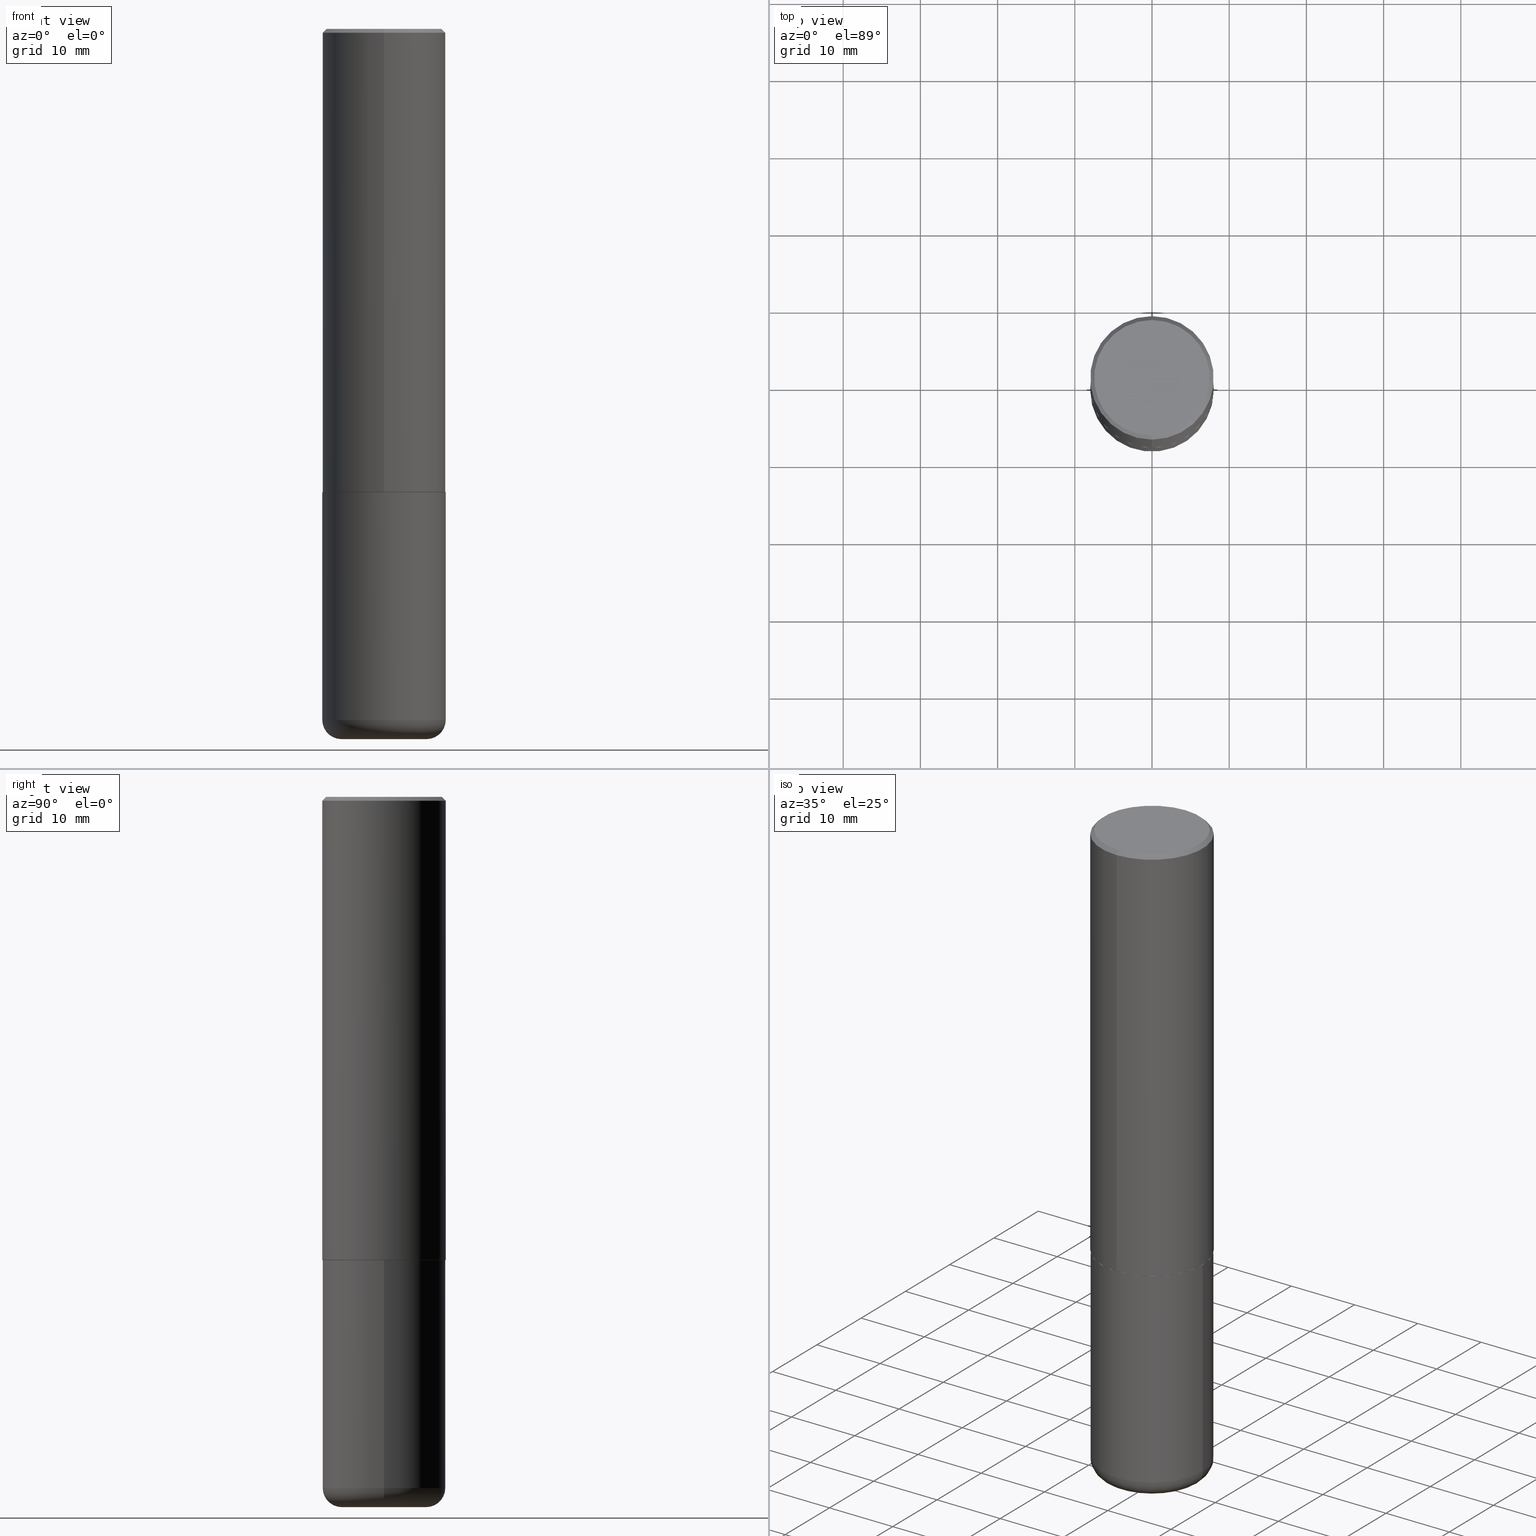
[diagram: canonical four-view strip — front | top / right | iso, engineering-drawing reading convention]
A machine part, canonical four-view strip (front | top / right | iso — engineering-drawing reading convention). The complete STEP part file that produces these views, byte-faithful:
ISO-10303-21;
HEADER;
FILE_DESCRIPTION (( 'STEP AP203' ),
    '1' );
FILE_NAME ('46920.STEP',
    '2024-03-05T08:37:29',
    ( '' ),
    ( '' ),
    'SwSTEP 2.0',
    'SolidWorks 2023',
    '' );
FILE_SCHEMA (( 'CONFIG_CONTROL_DESIGN' ));
ENDSEC;

DATA;
#1 = DIRECTION ( 'NONE',  ( 2.438088387897960049E-29, -3.491481338843145188E-15, -1.000000000000000000 ) ) ;
#2 = CIRCLE ( 'NONE', #211, 0.09839999999999986258 ) ;
#3 = CARTESIAN_POINT ( 'NONE',  ( 0.2165500000000000203, -1.415830597714283123E-14, -3.621999999999999442 ) ) ;
#4 = COORDINATED_UNIVERSAL_TIME_OFFSET ( 5, 0, .BEHIND. ) ;
#5 = DIRECTION ( 'NONE',  ( -2.445305379362280801E-29, 3.491715375355152192E-15, 1.000000000000000000 ) ) ;
#6 = CALENDAR_DATE ( 2024, 5, 3 ) ;
#7 = EDGE_CURVE ( 'NONE', #243, #277, #342, .T. ) ;
#8 = CARTESIAN_POINT ( 'NONE',  ( -2.192301132659546270E-15, -0.3139500000000083335, -2.362199999999998745 ) ) ;
#9 = CIRCLE ( 'NONE', #240, 0.2165500000000000203 ) ;
#10 = DIRECTION ( 'NONE',  ( 2.445305379362280521E-29, -3.491715375355152192E-15, -1.000000000000000000 ) ) ;
#11 = DIRECTION ( 'NONE',  ( -2.445468806185136877E-29, 3.491481338843145188E-15, 1.000000000000000000 ) ) ;
#12 = DIRECTION ( 'NONE',  ( 1.000000000000000000, -6.982962677686269866E-15, 0.000000000000000000 ) ) ;
#13 = ADVANCED_FACE ( 'NONE', ( #328 ), #197, .F. ) ;
#14 = CONICAL_SURFACE ( 'NONE', #38, 0.3139500000000000624, 0.7853981633975165577 ) ;
#15 = DIRECTION ( 'NONE',  ( 6.982962677686265922E-15, 1.000000000000000000, -3.496670018878889100E-15 ) ) ;
#16 = FACE_OUTER_BOUND ( 'NONE', #19, .T. ) ;
#17 = ORIENTED_EDGE ( 'NONE', *, *, #352, .T. ) ;
#18 = VECTOR ( 'NONE', #198, 39.37007874015748143 ) ;
#19 = EDGE_LOOP ( 'NONE', ( #251, #47, #320, #341 ) ) ;
#20 = ORIENTED_EDGE ( 'NONE', *, *, #329, .F. ) ;
#21 = APPROVAL_ROLE ( '' ) ;
#22 = ORIENTED_EDGE ( 'NONE', *, *, #7, .F. ) ;
#23 = EDGE_CURVE ( 'NONE', #86, #116, #355, .T. ) ;
#24 =( LENGTH_UNIT ( ) NAMED_UNIT ( * ) SI_UNIT ( $, .METRE. ) );
#25 = CIRCLE ( 'NONE', #412, 0.3149500000000000077 ) ;
#26 = EDGE_LOOP ( 'NONE', ( #88, #380, #210, #128 ) ) ;
#27 = ADVANCED_FACE ( 'NONE', ( #295 ), #269, .T. ) ;
#28 = DIRECTION ( 'NONE',  ( -6.982962677686265922E-15, -1.000000000000000000, 3.469564049740290009E-15 ) ) ;
#29 = FACE_OUTER_BOUND ( 'NONE', #275, .T. ) ;
#30 = APPROVAL_ROLE ( '' ) ;
#31 = CARTESIAN_POINT ( 'NONE',  ( 5.776300367129578571E-29, -8.248130059663939111E-15, -2.362199999999999633 ) ) ;
#32 = CIRCLE ( 'NONE', #374, 0.2949499999999998234 ) ;
#33 = PERSON_AND_ORGANIZATION_ROLE ( 'design_supplier' ) ;
#34 = DIRECTION ( 'NONE',  ( 2.438088387897960049E-29, -3.491481338843145188E-15, -1.000000000000000000 ) ) ;
#35 = DATE_AND_TIME ( #92, #85 ) ;
#36 = DIRECTION ( 'NONE',  ( -6.982962677686264344E-15, -1.000000000000000000, 3.491715375355152192E-15 ) ) ;
#37 = ADVANCED_FACE ( 'NONE', ( #359 ), #121, .T. ) ;
#38 = AXIS2_PLACEMENT_3D ( 'NONE', #31, #95, #65 ) ;
#39 = LINE ( 'NONE', #172, #43 ) ;
#40 = DIRECTION ( 'NONE',  ( -2.445305379362280801E-29, 3.491715375355152192E-15, 1.000000000000000000 ) ) ;
#41 = PRODUCT_DEFINITION ( 'UNKNOWN', '', #67, #291 ) ;
#42 = DIRECTION ( 'NONE',  ( 1.000000000000000000, -6.982962677686266711E-15, 0.000000000000000000 ) ) ;
#43 = VECTOR ( 'NONE', #397, 39.37007874015748143 ) ;
#44 = APPROVAL_PERSON_ORGANIZATION ( #388, #366, #30 ) ;
#45 = DIRECTION ( 'NONE',  ( -2.445468806185136597E-29, 3.491481338843145583E-15, 1.000000000000000000 ) ) ;
#46 = DIRECTION ( 'NONE',  ( -6.982962677686264344E-15, -1.000000000000000000, 3.491715375355152192E-15 ) ) ;
#47 = ORIENTED_EDGE ( 'NONE', *, *, #114, .T. ) ;
#48 = CLOSED_SHELL ( 'NONE', ( #296, #80, #27, #233, #402, #146, #228, #265 ) ) ;
#49 = LENGTH_MEASURE_WITH_UNIT ( LENGTH_MEASURE( 0.02539999999999999897 ), #24 );
#50 = VECTOR ( 'NONE', #319, 39.37007874015748143 ) ;
#51 = ORIENTED_EDGE ( 'NONE', *, *, #384, .T. ) ;
#52 =( CONVERSION_BASED_UNIT ( 'INCH', #49 ) LENGTH_UNIT ( ) NAMED_UNIT ( #218 ) );
#53 = CC_DESIGN_PERSON_AND_ORGANIZATION_ASSIGNMENT ( #381, #163, ( #256 ) ) ;
#54 = VERTEX_POINT ( 'NONE', #3 ) ;
#55 = CARTESIAN_POINT ( 'NONE',  ( 0.000000000000000000, 0.000000000000000000, 0.000000000000000000 ) ) ;
#56 = ORIENTED_EDGE ( 'NONE', *, *, #305, .F. ) ;
#57 = AXIS2_PLACEMENT_3D ( 'NONE', #330, #99, #133 ) ;
#58 = AXIS2_PLACEMENT_3D ( 'NONE', #138, #136, #391 ) ;
#59 = CARTESIAN_POINT ( 'NONE',  ( 5.773855061750216491E-29, -8.244638344288584824E-15, -2.361199999999999743 ) ) ;
#60 = CC_DESIGN_PERSON_AND_ORGANIZATION_ASSIGNMENT ( #68, #94, ( #41 ) ) ;
#61 = CARTESIAN_POINT ( 'NONE',  ( 5.773855061750216491E-29, -8.244638344288584824E-15, -2.361199999999999743 ) ) ;
#62 = CARTESIAN_POINT ( 'NONE',  ( -0.3149500000000000077, 2.237854346276435590E-15, -1.549218606675782676E-29 ) ) ;
#63 = CARTESIAN_POINT ( 'NONE',  ( 8.616853885473946211E-29, -1.230258364554770589E-14, -3.523599999999999621 ) ) ;
#64 = APPROVAL_DATE_TIME ( #297, #134 ) ;
#65 = DIRECTION ( 'NONE',  ( -6.982962677686266711E-15, -1.000000000000000000, 3.480615376543096131E-15 ) ) ;
#66 = AXIS2_PLACEMENT_3D ( 'NONE', #268, #335, #109 ) ;
#67 = PRODUCT_DEFINITION_FORMATION_WITH_SPECIFIED_SOURCE ( 'ANY', '', #273, .NOT_KNOWN. ) ;
#68 = PERSON_AND_ORGANIZATION ( #385, #131 ) ;
#69 = DIRECTION ( 'NONE',  ( -2.445305379362280801E-29, 3.491715375355152192E-15, 1.000000000000000000 ) ) ;
#70 = CC_DESIGN_PERSON_AND_ORGANIZATION_ASSIGNMENT ( #289, #386, ( #67 ) ) ;
#71 = LINE ( 'NONE', #395, #200 ) ;
#72 = VERTEX_POINT ( 'NONE', #382 ) ;
#73 = DIRECTION ( 'NONE',  ( -6.982962677686265922E-15, -1.000000000000000000, 3.491715375355151403E-15 ) ) ;
#74 = APPLICATION_CONTEXT ( 'configuration controlled 3d designs of mechanical parts and assemblies' ) ;
#75 = ADVANCED_FACE ( 'NONE', ( #387 ), #120, .T. ) ;
#76 = CIRCLE ( 'NONE', #321, 0.3149500000000000077 ) ;
#77 = LINE ( 'NONE', #186, #50 ) ;
#78 = PRODUCT_RELATED_PRODUCT_CATEGORY ( 'detail', '', ( #273 ) ) ;
#79 = ORIENTED_EDGE ( 'NONE', *, *, #190, .F. ) ;
#80 = ADVANCED_FACE ( 'NONE', ( #192 ), #229, .T. ) ;
#81 = DIRECTION ( 'NONE',  ( -2.445468806185136597E-29, 3.491481338843145583E-15, 1.000000000000000000 ) ) ;
#82 = ORIENTED_EDGE ( 'NONE', *, *, #97, .F. ) ;
#83 = LINE ( 'NONE', #122, #336 ) ;
#84 = AXIS2_PLACEMENT_3D ( 'NONE', #59, #322, #28 ) ;
#85 = LOCAL_TIME ( 3, 37, 29.00000000000000000, #96 ) ;
#86 = VERTEX_POINT ( 'NONE', #170 ) ;
#87 = DIRECTION ( 'NONE',  ( -2.445305379362280801E-29, 3.491715375355152192E-15, 1.000000000000000000 ) ) ;
#88 = ORIENTED_EDGE ( 'NONE', *, *, #117, .T. ) ;
#89 = ORIENTED_EDGE ( 'NONE', *, *, #140, .T. ) ;
#90 = DATE_TIME_ROLE ( 'classification_date' ) ;
#91 = DIRECTION ( 'NONE',  ( 1.000000000000000000, -6.982962677686266711E-15, 4.883557194083112901E-29 ) ) ;
#92 = CALENDAR_DATE ( 2024, 5, 3 ) ;
#93 = DIRECTION ( 'NONE',  ( 2.445305379362280801E-29, -3.491715375355152192E-15, -1.000000000000000000 ) ) ;
#94 = PERSON_AND_ORGANIZATION_ROLE ( 'creator' ) ;
#95 = DIRECTION ( 'NONE',  ( -2.445305379362280801E-29, 3.491715375355152192E-15, 1.000000000000000000 ) ) ;
#96 = COORDINATED_UNIVERSAL_TIME_OFFSET ( 5, 0, .BEHIND. ) ;
#97 = EDGE_CURVE ( 'NONE', #72, #86, #394, .T. ) ;
#98 = AXIS2_PLACEMENT_3D ( 'NONE', #360, #104, #199 ) ;
#99 = DIRECTION ( 'NONE',  ( -2.445468806185136597E-29, 3.491481338843145583E-15, 1.000000000000000000 ) ) ;
#100 = CARTESIAN_POINT ( 'NONE',  ( 8.616853885473946211E-29, -1.230258364554770589E-14, -3.523599999999999621 ) ) ;
#101 = ADVANCED_FACE ( 'NONE', ( #258 ), #353, .T. ) ;
#102 = CARTESIAN_POINT ( 'NONE',  ( 2.234301632597693462E-15, 0.3139499999999917912, -2.362200000000000966 ) ) ;
#103 = ORIENTED_EDGE ( 'NONE', *, *, #262, .T. ) ;
#104 = DIRECTION ( 'NONE',  ( -2.445305379362280801E-29, 3.491715375355152192E-15, 1.000000000000000000 ) ) ;
#105 = EDGE_LOOP ( 'NONE', ( #103, #149 ) ) ;
#106 = APPROVAL_PERSON_ORGANIZATION ( #276, #204, #21 ) ;
#107 = CARTESIAN_POINT ( 'NONE',  ( 0.3149500000000000077, -1.044686131395256792E-14, -2.362199999999999633 ) ) ;
#108 = CARTESIAN_POINT ( 'NONE',  ( -2.092108864420427637E-15, -0.2949499999999998234, 1.196422466144134051E-15 ) ) ;
#109 = DIRECTION ( 'NONE',  ( -6.982962677686265922E-15, -1.000000000000000000, 3.491715375355152192E-15 ) ) ;
#110 = CARTESIAN_POINT ( 'NONE',  ( 2.059624841783562880E-15, 0.2949499999999998234, -9.466109418694351198E-16 ) ) ;
#111 = EDGE_CURVE ( 'NONE', #156, #344, #32, .T. ) ;
#112 = AXIS2_PLACEMENT_3D ( 'NONE', #298, #5, #36 ) ;
#113 = EDGE_LOOP ( 'NONE', ( #159, #267, #350, #82 ) ) ;
#114 = EDGE_CURVE ( 'NONE', #181, #86, #270, .T. ) ;
#115 = CARTESIAN_POINT ( 'NONE',  ( -0.2165500000000000203, -1.058609720713632398E-14, -3.621999999999999442 ) ) ;
#116 = VERTEX_POINT ( 'NONE', #162 ) ;
#117 = EDGE_CURVE ( 'NONE', #54, #378, #182, .T. ) ;
#118 = APPLICATION_PROTOCOL_DEFINITION ( 'international standard', 'config_control_design', 1994, #74 ) ;
#119 = ORIENTED_EDGE ( 'NONE', *, *, #23, .F. ) ;
#120 = TOROIDAL_SURFACE ( 'NONE', #392, 0.2165500000000000203, 0.09839999999999984870 ) ;
#121 = TOROIDAL_SURFACE ( 'NONE', #57, 0.2165500000000000203, 0.09839999999999984870 ) ;
#122 = CARTESIAN_POINT ( 'NONE',  ( -2.160713844398143363E-15, -0.3149500000000000632, -0.01999999999999896999 ) ) ;
#123 = CONICAL_SURFACE ( 'NONE', #150, 0.3149500000000000077, 0.7853981633974472798 ) ;
#124 = FACE_OUTER_BOUND ( 'NONE', #179, .T. ) ;
#125 = EDGE_LOOP ( 'NONE', ( #79, #287, #312, #142 ) ) ;
#126 = APPLICATION_CONTEXT ( 'configuration controlled 3d designs of mechanical parts and assemblies' ) ;
#127 = DIRECTION ( 'NONE',  ( -2.445305379362280801E-29, 3.491715375355152192E-15, 1.000000000000000000 ) ) ;
#128 = ORIENTED_EDGE ( 'NONE', *, *, #188, .F. ) ;
#129 = CALENDAR_DATE ( 2024, 5, 3 ) ;
#130 = DIRECTION ( 'NONE',  ( 1.000000000000000000, -6.982962677686264344E-15, 0.000000000000000000 ) ) ;
#131 = ORGANIZATION ( 'UNSPECIFIED', 'UNSPECIFIED', '' ) ;
#132 = DIRECTION ( 'NONE',  ( -1.000000000000000000, 6.982962677686265922E-15, -4.876176775795935793E-29 ) ) ;
#133 = DIRECTION ( 'NONE',  ( 1.000000000000000000, -6.982962677686266711E-15, 4.883557194083112901E-29 ) ) ;
#134 = APPROVAL ( #259, 'UNSPECIFIED' ) ;
#135 = PERSON_AND_ORGANIZATION ( #385, #131 ) ;
#136 = DIRECTION ( 'NONE',  ( -2.445468806185136597E-29, 3.491481338843145583E-15, 1.000000000000000000 ) ) ;
#137 = CIRCLE ( 'NONE', #235, 0.3149500000000000077 ) ;
#138 = CARTESIAN_POINT ( 'NONE',  ( 0.000000000000000000, 0.000000000000000000, 0.000000000000000000 ) ) ;
#139 = LOCAL_TIME ( 3, 37, 29.00000000000000000, #224 ) ;
#140 = EDGE_CURVE ( 'NONE', #86, #181, #326, .T. ) ;
#141 = ORIENTED_EDGE ( 'NONE', *, *, #217, .T. ) ;
#142 = ORIENTED_EDGE ( 'NONE', *, *, #250, .F. ) ;
#143 = ADVANCED_FACE ( 'NONE', ( #29 ), #164, .T. ) ;
#144 = DIRECTION ( 'NONE',  ( 6.982962677686265922E-15, 1.000000000000000000, -3.491715375355152192E-15 ) ) ;
#145 = LINE ( 'NONE', #62, #195 ) ;
#146 = ADVANCED_FACE ( 'NONE', ( #324 ), #14, .T. ) ;
#147 = CARTESIAN_POINT ( 'NONE',  ( -4.072436427570742464E-45, 5.815138268339145389E-31, 1.665410161831323580E-16 ) ) ;
#148 = DIRECTION ( 'NONE',  ( 0.000000000000000000, 0.000000000000000000, 1.000000000000000000 ) ) ;
#149 = ORIENTED_EDGE ( 'NONE', *, *, #111, .T. ) ;
#150 = AXIS2_PLACEMENT_3D ( 'NONE', #310, #302, #15 ) ;
#151 = DIRECTION ( 'NONE',  ( 1.000000000000000000, 0.000000000000000000, 0.000000000000000000 ) ) ;
#152 = ORIENTED_EDGE ( 'NONE', *, *, #369, .T. ) ;
#153 = CARTESIAN_POINT ( 'NONE',  ( 0.000000000000000000, 0.000000000000000000, 0.000000000000000000 ) ) ;
#154 = EDGE_LOOP ( 'NONE', ( #89, #334, #167, #119 ) ) ;
#155 = COORDINATED_UNIVERSAL_TIME_OFFSET ( 5, 0, .BEHIND. ) ;
#156 = VERTEX_POINT ( 'NONE', #108 ) ;
#157 = CIRCLE ( 'NONE', #261, 0.09839999999999986258 ) ;
#158 =( NAMED_UNIT ( * ) PLANE_ANGLE_UNIT ( ) SI_UNIT ( $, .RADIAN. ) );
#159 = ORIENTED_EDGE ( 'NONE', *, *, #379, .T. ) ;
#160 = CC_DESIGN_DATE_AND_TIME_ASSIGNMENT ( #390, #90, ( #256 ) ) ;
#161 = DATE_AND_TIME ( #168, #376 ) ;
#162 = CARTESIAN_POINT ( 'NONE',  ( -2.160713844398143363E-15, -0.3149500000000000632, -0.01999999999999896999 ) ) ;
#163 = PERSON_AND_ORGANIZATION_ROLE ( 'classification_officer' ) ;
#164 = PLANE ( 'NONE',  #301 ) ;
#165 = AXIS2_PLACEMENT_3D ( 'NONE', #323, #34, #257 ) ;
#166 = CC_DESIGN_APPROVAL ( #204, ( #41 ) ) ;
#167 = ORIENTED_EDGE ( 'NONE', *, *, #352, .F. ) ;
#168 = CALENDAR_DATE ( 2024, 5, 3 ) ;
#169 = CARTESIAN_POINT ( 'NONE',  ( 4.890610758724579539E-31, -6.983430750710329184E-17, -0.02000000000000007327 ) ) ;
#170 = CARTESIAN_POINT ( 'NONE',  ( -2.199284095337233467E-15, -0.3149500000000085564, -2.361199999999998411 ) ) ;
#171 = DIRECTION ( 'NONE',  ( -2.445305379362280801E-29, 3.491715375355152192E-15, 1.000000000000000000 ) ) ;
#172 = CARTESIAN_POINT ( 'NONE',  ( 2.199284095337289871E-15, 0.3149499999999999522, -0.02000000000000117309 ) ) ;
#173 = DIRECTION ( 'NONE',  ( 1.000000000000000000, -6.982962677686271444E-15, 0.000000000000000000 ) ) ;
#174 = FACE_OUTER_BOUND ( 'NONE', #183, .T. ) ;
#175 = CIRCLE ( 'NONE', #383, 0.2949499999999998234 ) ;
#176 = AXIS2_PLACEMENT_3D ( 'NONE', #61, #357, #191 ) ;
#177 = CARTESIAN_POINT ( 'NONE',  ( 5.776686413970529753E-29, -8.247577218615278049E-15, -2.362199999999999633 ) ) ;
#178 = CARTESIAN_POINT ( 'NONE',  ( 2.129454468560426573E-15, 0.2949499999999998234, -8.633404337778690394E-16 ) ) ;
#179 = EDGE_LOOP ( 'NONE', ( #187, #184, #409, #241 ) ) ;
#180 = DIRECTION ( 'NONE',  ( 1.000000000000000000, -6.982962677686264344E-15, 0.000000000000000000 ) ) ;
#181 = VERTEX_POINT ( 'NONE', #364 ) ;
#182 = CIRCLE ( 'NONE', #399, 0.2165500000000000203 ) ;
#183 = EDGE_LOOP ( 'NONE', ( #375, #213 ) ) ;
#184 = ORIENTED_EDGE ( 'NONE', *, *, #190, .T. ) ;
#185 = EDGE_CURVE ( 'NONE', #277, #243, #361, .T. ) ;
#186 = CARTESIAN_POINT ( 'NONE',  ( 2.237854346276435985E-15, 0.3149500000000001743, -1.099715757468105786E-15 ) ) ;
#187 = ORIENTED_EDGE ( 'NONE', *, *, #185, .T. ) ;
#188 = EDGE_CURVE ( 'NONE', #54, #277, #2, .T. ) ;
#189 = AXIS2_PLACEMENT_3D ( 'NONE', #377, #87, #242 ) ;
#190 = EDGE_CURVE ( 'NONE', #243, #371, #145, .T. ) ;
#191 = DIRECTION ( 'NONE',  ( -6.982962677686265922E-15, -1.000000000000000000, 3.469564049740290009E-15 ) ) ;
#192 = FACE_OUTER_BOUND ( 'NONE', #154, .T. ) ;
#193 = DATE_AND_TIME ( #417, #343 ) ;
#194 = AXIS2_PLACEMENT_3D ( 'NONE', #100, #254, #225 ) ;
#195 = VECTOR ( 'NONE', #11, 39.37007874015748143 ) ;
#196 = DIRECTION ( 'NONE',  ( -2.445468806185136597E-29, 3.491481338843145583E-15, 1.000000000000000000 ) ) ;
#197 = PLANE ( 'NONE',  #165 ) ;
#198 = DIRECTION ( 'NONE',  ( 5.024295867788404755E-15, 0.7071067811865981989, 0.7071067811864968355 ) ) ;
#199 = DIRECTION ( 'NONE',  ( -6.982962677686266711E-15, -1.000000000000000000, 3.480615376543096131E-15 ) ) ;
#200 = VECTOR ( 'NONE', #367, 39.37007874015748143 ) ;
#201 = CC_DESIGN_APPROVAL ( #134, ( #67 ) ) ;
#202 = ADVANCED_FACE ( 'NONE', ( #124 ), #264, .T. ) ;
#203 = LINE ( 'NONE', #333, #18 ) ;
#204 = APPROVAL ( #313, 'UNSPECIFIED' ) ;
#205 = PLANE ( 'NONE',  #66 ) ;
#206 = CIRCLE ( 'NONE', #219, 0.3139500000000000624 ) ;
#207 = PRODUCT_DEFINITION_SHAPE ( 'NONE', 'NONE',  #41 ) ;
#208 = APPLICATION_PROTOCOL_DEFINITION ( 'international standard', 'config_control_design', 1994, #126 ) ;
#209 = EDGE_LOOP ( 'NONE', ( #405, #306, #17, #56 ) ) ;
#210 = ORIENTED_EDGE ( 'NONE', *, *, #185, .F. ) ;
#211 = AXIS2_PLACEMENT_3D ( 'NONE', #238, #288, #173 ) ;
#212 = DIRECTION ( 'NONE',  ( -1.000000000000000000, 7.105427357601009747E-15, 0.000000000000000000 ) ) ;
#213 = ORIENTED_EDGE ( 'NONE', *, *, #290, .F. ) ;
#214 = DIRECTION ( 'NONE',  ( -4.851104656540958753E-15, -0.7071067811865492381, -0.7071067811865457964 ) ) ;
#215 = ORIENTED_EDGE ( 'NONE', *, *, #114, .F. ) ;
#216 = VERTEX_POINT ( 'NONE', #107 ) ;
#217 = EDGE_CURVE ( 'NONE', #318, #116, #25, .T. ) ;
#218 = DIMENSIONAL_EXPONENTS ( 1.000000000000000000, 0.000000000000000000, 0.000000000000000000, 0.000000000000000000, 0.000000000000000000, 0.000000000000000000, 0.000000000000000000 ) ;
#219 = AXIS2_PLACEMENT_3D ( 'NONE', #304, #40, #331 ) ;
#220 = APPROVAL_STATUS ( 'not_yet_approved' ) ;
#221 = UNCERTAINTY_MEASURE_WITH_UNIT (LENGTH_MEASURE( 1.000000000000000082E-05 ), #52, 'distance_accuracy_value', 'NONE');
#222 = DIRECTION ( 'NONE',  ( -4.937700262164884886E-15, -0.7071067811865933139, 0.7071067811865017205 ) ) ;
#223 = DATE_TIME_ROLE ( 'creation_date' ) ;
#224 = COORDINATED_UNIVERSAL_TIME_OFFSET ( 5, 0, .BEHIND. ) ;
#225 = DIRECTION ( 'NONE',  ( 1.000000000000000000, -6.982962677686269866E-15, 0.000000000000000000 ) ) ;
#226 = SHAPE_DEFINITION_REPRESENTATION ( #207, #227 ) ;
#227 = ADVANCED_BREP_SHAPE_REPRESENTATION ( '46920', ( #338, #337, #314 ), #274 ) ;
#228 = ADVANCED_FACE ( 'NONE', ( #174 ), #205, .F. ) ;
#229 = CYLINDRICAL_SURFACE ( 'NONE', #112, 0.3149500000000001743 ) ;
#230 = DIRECTION ( 'NONE',  ( -6.982962677686265922E-15, -1.000000000000000000, 3.491715375355151403E-15 ) ) ;
#231 = CC_DESIGN_PERSON_AND_ORGANIZATION_ASSIGNMENT ( #294, #33, ( #67 ) ) ;
#232 = FACE_OUTER_BOUND ( 'NONE', #113, .T. ) ;
#233 = ADVANCED_FACE ( 'NONE', ( #237 ), #123, .T. ) ;
#234 = PLANE ( 'NONE',  #411 ) ;
#235 = AXIS2_PLACEMENT_3D ( 'NONE', #282, #249, #410 ) ;
#236 = CC_DESIGN_PERSON_AND_ORGANIZATION_ASSIGNMENT ( #373, #317, ( #273 ) ) ;
#237 = FACE_OUTER_BOUND ( 'NONE', #245, .T. ) ;
#238 = CARTESIAN_POINT ( 'NONE',  ( 0.2165500000000000203, -1.381474421340066671E-14, -3.523599999999999621 ) ) ;
#239 = CARTESIAN_POINT ( 'NONE',  ( 0.3149499999999999522, -1.450186774088499734E-14, -3.523599999999999621 ) ) ;
#240 = AXIS2_PLACEMENT_3D ( 'NONE', #347, #81, #180 ) ;
#241 = ORIENTED_EDGE ( 'NONE', *, *, #278, .F. ) ;
#242 = DIRECTION ( 'NONE',  ( -6.982962677686266711E-15, -1.000000000000000000, 3.480615376543096131E-15 ) ) ;
#243 = VERTEX_POINT ( 'NONE', #365 ) ;
#244 = MECHANICAL_CONTEXT ( 'NONE', #74, 'mechanical' ) ;
#245 = EDGE_LOOP ( 'NONE', ( #20, #271, #316, #141 ) ) ;
#246 = AXIS2_PLACEMENT_3D ( 'NONE', #272, #45, #400 ) ;
#247 = CARTESIAN_POINT ( 'NONE',  ( -0.2165500000000000203, -1.076390335125921037E-14, -3.523599999999999621 ) ) ;
#248 = ORIENTED_EDGE ( 'NONE', *, *, #349, .F. ) ;
#249 = DIRECTION ( 'NONE',  ( -2.445468806185136597E-29, 3.491481338843145583E-15, 1.000000000000000000 ) ) ;
#250 = EDGE_CURVE ( 'NONE', #371, #216, #308, .T. ) ;
#251 = ORIENTED_EDGE ( 'NONE', *, *, #414, .F. ) ;
#252 = SECURITY_CLASSIFICATION_LEVEL ( 'unclassified' ) ;
#253 = DIRECTION ( 'NONE',  ( -2.445468806185136597E-29, 3.491481338843145583E-15, 1.000000000000000000 ) ) ;
#254 = DIRECTION ( 'NONE',  ( -2.445468806185136597E-29, 3.491481338843145583E-15, 1.000000000000000000 ) ) ;
#255 = APPROVAL_ROLE ( '' ) ;
#256 = SECURITY_CLASSIFICATION ( '', '', #252 ) ;
#257 = DIRECTION ( 'NONE',  ( -1.000000000000000000, 6.982962677686265922E-15, -4.876176775795935793E-29 ) ) ;
#258 = FACE_OUTER_BOUND ( 'NONE', #125, .T. ) ;
#259 = APPROVAL_STATUS ( 'not_yet_approved' ) ;
#260 = DIRECTION ( 'NONE',  ( 6.982962677686265922E-15, 1.000000000000000000, -3.496670018878889100E-15 ) ) ;
#261 = AXIS2_PLACEMENT_3D ( 'NONE', #247, #286, #212 ) ;
#262 = EDGE_CURVE ( 'NONE', #344, #156, #175, .T. ) ;
#263 = DIRECTION ( 'NONE',  ( -2.445305379362280801E-29, 3.491715375355152192E-15, 1.000000000000000000 ) ) ;
#264 = CYLINDRICAL_SURFACE ( 'NONE', #246, 0.3149500000000000077 ) ;
#265 = ADVANCED_FACE ( 'NONE', ( #307 ), #234, .F. ) ;
#266 = DIRECTION ( 'NONE',  ( -6.982962677686265922E-15, -1.000000000000000000, 3.496670018878889100E-15 ) ) ;
#267 = ORIENTED_EDGE ( 'NONE', *, *, #281, .T. ) ;
#268 = CARTESIAN_POINT ( 'NONE',  ( 5.776300367129578571E-29, -8.248130059663939111E-15, -2.362199999999999633 ) ) ;
#269 = CONICAL_SURFACE ( 'NONE', #325, 0.3149500000000000077, 0.7853981633974472798 ) ;
#270 = CIRCLE ( 'NONE', #84, 0.3149500000000002853 ) ;
#271 = ORIENTED_EDGE ( 'NONE', *, *, #262, .F. ) ;
#272 = CARTESIAN_POINT ( 'NONE',  ( 0.000000000000000000, 0.000000000000000000, 0.000000000000000000 ) ) ;
#273 = PRODUCT ( '46920', '46920', '', ( #244 ) ) ;
#274 =( GEOMETRIC_REPRESENTATION_CONTEXT ( 3 ) GLOBAL_UNCERTAINTY_ASSIGNED_CONTEXT ( ( #221 ) ) GLOBAL_UNIT_ASSIGNED_CONTEXT ( ( #52, #158, #370 ) ) REPRESENTATION_CONTEXT ( 'NONE', 'WORKASPACE' ) );
#275 = EDGE_LOOP ( 'NONE', ( #407, #346 ) ) ;
#276 = PERSON_AND_ORGANIZATION ( #385, #131 ) ;
#277 = VERTEX_POINT ( 'NONE', #239 ) ;
#278 = EDGE_CURVE ( 'NONE', #277, #216, #71, .T. ) ;
#279 = CARTESIAN_POINT ( 'NONE',  ( 2.199284095337289871E-15, 0.3149499999999999522, -0.02000000000000117309 ) ) ;
#280 = ORIENTED_EDGE ( 'NONE', *, *, #97, .T. ) ;
#281 = EDGE_CURVE ( 'NONE', #283, #181, #203, .T. ) ;
#282 = CARTESIAN_POINT ( 'NONE',  ( 5.776686413970529753E-29, -8.247577218615278049E-15, -2.362199999999999633 ) ) ;
#283 = VERTEX_POINT ( 'NONE', #102 ) ;
#284 = CONICAL_SURFACE ( 'NONE', #98, 0.3139500000000000624, 0.7853981633975165577 ) ;
#285 = CC_DESIGN_SECURITY_CLASSIFICATION ( #256, ( #67 ) ) ;
#286 = DIRECTION ( 'NONE',  ( 7.105427357601001859E-15, 1.000000000000000000, -3.491481338843145583E-15 ) ) ;
#287 = ORIENTED_EDGE ( 'NONE', *, *, #7, .T. ) ;
#288 = DIRECTION ( 'NONE',  ( -6.982962677686266711E-15, -1.000000000000000000, 3.491481338843145583E-15 ) ) ;
#289 = PERSON_AND_ORGANIZATION ( #385, #131 ) ;
#290 = EDGE_CURVE ( 'NONE', #283, #72, #206, .T. ) ;
#291 = DESIGN_CONTEXT ( 'detailed design', #126, 'design' ) ;
#292 = CARTESIAN_POINT ( 'NONE',  ( 8.857488016002563354E-29, -1.264614540928987041E-14, -3.621999999999999442 ) ) ;
#293 = CARTESIAN_POINT ( 'NONE',  ( 1.523889590590419512E-28, -3.507606103769704490E-15, -3.621999999999999886 ) ) ;
#294 = PERSON_AND_ORGANIZATION ( #385, #131 ) ;
#295 = FACE_OUTER_BOUND ( 'NONE', #209, .T. ) ;
#296 = ADVANCED_FACE ( 'NONE', ( #232 ), #284, .T. ) ;
#297 = DATE_AND_TIME ( #129, #139 ) ;
#298 = CARTESIAN_POINT ( 'NONE',  ( 0.000000000000000000, 0.000000000000000000, 0.000000000000000000 ) ) ;
#299 = CARTESIAN_POINT ( 'NONE',  ( -2.199284095337290265E-15, -0.3149500000000001743, 1.099715757468105786E-15 ) ) ;
#300 = VECTOR ( 'NONE', #222, 39.37007874015748143 ) ;
#301 = AXIS2_PLACEMENT_3D ( 'NONE', #293, #1, #132 ) ;
#302 = DIRECTION ( 'NONE',  ( 2.445305379362280801E-29, -3.491715375355152192E-15, -1.000000000000000000 ) ) ;
#303 = CC_DESIGN_APPROVAL ( #366, ( #256 ) ) ;
#304 = CARTESIAN_POINT ( 'NONE',  ( 5.776300367129578571E-29, -8.248130059663939111E-15, -2.362199999999999633 ) ) ;
#305 = EDGE_CURVE ( 'NONE', #344, #318, #39, .T. ) ;
#306 = ORIENTED_EDGE ( 'NONE', *, *, #329, .T. ) ;
#307 = FACE_OUTER_BOUND ( 'NONE', #105, .T. ) ;
#308 = CIRCLE ( 'NONE', #393, 0.3149500000000000077 ) ;
#309 = LOCAL_TIME ( 3, 37, 29.00000000000000000, #4 ) ;
#310 = CARTESIAN_POINT ( 'NONE',  ( 4.890610758724579539E-31, -6.983430750710329184E-17, -0.02000000000000007327 ) ) ;
#311 = CC_DESIGN_DATE_AND_TIME_ASSIGNMENT ( #161, #223, ( #41 ) ) ;
#312 = ORIENTED_EDGE ( 'NONE', *, *, #278, .T. ) ;
#313 = APPROVAL_STATUS ( 'not_yet_approved' ) ;
#314 = AXIS2_PLACEMENT_3D ( 'NONE', #153, #148, #151 ) ;
#315 = EDGE_LOOP ( 'NONE', ( #248, #51, #396, #22 ) ) ;
#316 = ORIENTED_EDGE ( 'NONE', *, *, #305, .T. ) ;
#317 = PERSON_AND_ORGANIZATION_ROLE ( 'design_owner' ) ;
#318 = VERTEX_POINT ( 'NONE', #279 ) ;
#319 = DIRECTION ( 'NONE',  ( -2.445305379362280801E-29, 3.491715375355152192E-15, 1.000000000000000000 ) ) ;
#320 = ORIENTED_EDGE ( 'NONE', *, *, #23, .T. ) ;
#321 = AXIS2_PLACEMENT_3D ( 'NONE', #406, #127, #415 ) ;
#322 = DIRECTION ( 'NONE',  ( -2.445305379362280801E-29, 3.491715375355152192E-15, 1.000000000000000000 ) ) ;
#323 = CARTESIAN_POINT ( 'NONE',  ( 5.776686413970529753E-29, -8.247577218615278049E-15, -2.362199999999999633 ) ) ;
#324 = FACE_OUTER_BOUND ( 'NONE', #416, .T. ) ;
#325 = AXIS2_PLACEMENT_3D ( 'NONE', #169, #93, #260 ) ;
#326 = CIRCLE ( 'NONE', #176, 0.3149500000000002853 ) ;
#327 = APPROVAL_DATE_TIME ( #193, #204 ) ;
#328 = FACE_OUTER_BOUND ( 'NONE', #401, .T. ) ;
#329 = EDGE_CURVE ( 'NONE', #156, #116, #83, .T. ) ;
#330 = CARTESIAN_POINT ( 'NONE',  ( 8.616853885473946211E-29, -1.230258364554770589E-14, -3.523599999999999621 ) ) ;
#331 = DIRECTION ( 'NONE',  ( -6.982962677686266711E-15, -1.000000000000000000, 3.480615376543096131E-15 ) ) ;
#332 = AXIS2_PLACEMENT_3D ( 'NONE', #340, #253, #12 ) ;
#333 = CARTESIAN_POINT ( 'NONE',  ( 2.230748918918892169E-15, 0.3139499999999917912, -2.362200000000000966 ) ) ;
#334 = ORIENTED_EDGE ( 'NONE', *, *, #414, .T. ) ;
#335 = DIRECTION ( 'NONE',  ( -2.445305379362280521E-29, 3.491715375355152192E-15, 1.000000000000000000 ) ) ;
#336 = VECTOR ( 'NONE', #214, 39.37007874015748143 ) ;
#337 = MANIFOLD_SOLID_BREP ( 'Body-Move/Copy2[2]', #48 ) ;
#338 = MANIFOLD_SOLID_BREP ( 'Body-Move/Copy2[1]', #358 ) ;
#339 = DIRECTION ( 'NONE',  ( -2.445305379362280801E-29, 3.491715375355152192E-15, 1.000000000000000000 ) ) ;
#340 = CARTESIAN_POINT ( 'NONE',  ( 8.616853885473946211E-29, -1.230258364554770589E-14, -3.523599999999999621 ) ) ;
#341 = ORIENTED_EDGE ( 'NONE', *, *, #217, .F. ) ;
#342 = CIRCLE ( 'NONE', #194, 0.3149500000000000077 ) ;
#343 = LOCAL_TIME ( 3, 37, 29.00000000000000000, #155 ) ;
#344 = VERTEX_POINT ( 'NONE', #178 ) ;
#345 = CARTESIAN_POINT ( 'NONE',  ( -0.3149500000000000077, -8.037226085805055984E-15, -2.362199999999999633 ) ) ;
#346 = ORIENTED_EDGE ( 'NONE', *, *, #384, .F. ) ;
#347 = CARTESIAN_POINT ( 'NONE',  ( 8.857488016002563354E-29, -1.264614540928987041E-14, -3.621999999999999442 ) ) ;
#348 = ORIENTED_EDGE ( 'NONE', *, *, #290, .T. ) ;
#349 = EDGE_CURVE ( 'NONE', #378, #243, #157, .T. ) ;
#350 = ORIENTED_EDGE ( 'NONE', *, *, #140, .F. ) ;
#351 = AXIS2_PLACEMENT_3D ( 'NONE', #55, #339, #46 ) ;
#352 = EDGE_CURVE ( 'NONE', #116, #318, #76, .T. ) ;
#353 = CYLINDRICAL_SURFACE ( 'NONE', #58, 0.3149500000000000077 ) ;
#354 = APPROVAL_DATE_TIME ( #35, #366 ) ;
#355 = LINE ( 'NONE', #299, #398 ) ;
#356 = COORDINATED_UNIVERSAL_TIME_OFFSET ( 5, 0, .BEHIND. ) ;
#357 = DIRECTION ( 'NONE',  ( -2.445305379362280801E-29, 3.491715375355152192E-15, 1.000000000000000000 ) ) ;
#358 = CLOSED_SHELL ( 'NONE', ( #202, #75, #13, #101, #37, #143 ) ) ;
#359 = FACE_OUTER_BOUND ( 'NONE', #315, .T. ) ;
#360 = CARTESIAN_POINT ( 'NONE',  ( 5.776300367129578571E-29, -8.248130059663939111E-15, -2.362199999999999633 ) ) ;
#361 = CIRCLE ( 'NONE', #332, 0.3149500000000000077 ) ;
#362 = DIRECTION ( 'NONE',  ( -2.445305379362280801E-29, 3.491715375355152192E-15, 1.000000000000000000 ) ) ;
#363 = APPROVAL_PERSON_ORGANIZATION ( #135, #134, #255 ) ;
#364 = CARTESIAN_POINT ( 'NONE',  ( 2.237854346276465567E-15, 0.3149499999999920141, -2.361200000000000632 ) ) ;
#365 = CARTESIAN_POINT ( 'NONE',  ( -0.3149499999999999522, -1.006472929927126990E-14, -3.523599999999999621 ) ) ;
#366 = APPROVAL ( #220, 'UNSPECIFIED' ) ;
#367 = DIRECTION ( 'NONE',  ( -2.445468806185136877E-29, 3.491481338843145188E-15, 1.000000000000000000 ) ) ;
#368 = CIRCLE ( 'NONE', #189, 0.3139500000000000624 ) ;
#369 = EDGE_CURVE ( 'NONE', #216, #371, #137, .T. ) ;
#370 =( NAMED_UNIT ( * ) SI_UNIT ( $, .STERADIAN. ) SOLID_ANGLE_UNIT ( ) );
#371 = VERTEX_POINT ( 'NONE', #345 ) ;
#372 = ORIENTED_EDGE ( 'NONE', *, *, #250, .T. ) ;
#373 = PERSON_AND_ORGANIZATION ( #385, #131 ) ;
#374 = AXIS2_PLACEMENT_3D ( 'NONE', #389, #263, #230 ) ;
#375 = ORIENTED_EDGE ( 'NONE', *, *, #379, .F. ) ;
#376 = LOCAL_TIME ( 3, 37, 29.00000000000000000, #356 ) ;
#377 = CARTESIAN_POINT ( 'NONE',  ( 5.776300367129578571E-29, -8.248130059663939111E-15, -2.362199999999999633 ) ) ;
#378 = VERTEX_POINT ( 'NONE', #115 ) ;
#379 = EDGE_CURVE ( 'NONE', #72, #283, #368, .T. ) ;
#380 = ORIENTED_EDGE ( 'NONE', *, *, #349, .T. ) ;
#381 = PERSON_AND_ORGANIZATION ( #385, #131 ) ;
#382 = CARTESIAN_POINT ( 'NONE',  ( -2.192301132659546270E-15, -0.3139500000000083335, -2.362199999999998745 ) ) ;
#383 = AXIS2_PLACEMENT_3D ( 'NONE', #147, #362, #73 ) ;
#384 = EDGE_CURVE ( 'NONE', #378, #54, #9, .T. ) ;
#385 = PERSON ( 'UNSPECIFIED', 'UNSPECIFIED', 'UNSPECIFIED', ('UNSPECIFIED'), ('UNSPECIFIED'), ('UNSPECIFIED') ) ;
#386 = PERSON_AND_ORGANIZATION_ROLE ( 'creator' ) ;
#387 = FACE_OUTER_BOUND ( 'NONE', #26, .T. ) ;
#388 = PERSON_AND_ORGANIZATION ( #385, #131 ) ;
#389 = CARTESIAN_POINT ( 'NONE',  ( -4.072436427570742464E-45, 5.815138268339145389E-31, 1.665410161831323580E-16 ) ) ;
#390 = DATE_AND_TIME ( #6, #309 ) ;
#391 = DIRECTION ( 'NONE',  ( 1.000000000000000000, -6.982962677686266711E-15, 4.876176775795936353E-29 ) ) ;
#392 = AXIS2_PLACEMENT_3D ( 'NONE', #63, #196, #91 ) ;
#393 = AXIS2_PLACEMENT_3D ( 'NONE', #177, #404, #42 ) ;
#394 = LINE ( 'NONE', #8, #300 ) ;
#395 = CARTESIAN_POINT ( 'NONE',  ( 0.3149500000000000077, -2.199284095337289871E-15, 1.535751875536930130E-29 ) ) ;
#396 = ORIENTED_EDGE ( 'NONE', *, *, #188, .T. ) ;
#397 = DIRECTION ( 'NONE',  ( 4.937700262164542520E-15, 0.7071067811865443531, -0.7071067811865506814 ) ) ;
#398 = VECTOR ( 'NONE', #69, 39.37007874015748143 ) ;
#399 = AXIS2_PLACEMENT_3D ( 'NONE', #292, #418, #130 ) ;
#400 = DIRECTION ( 'NONE',  ( 1.000000000000000000, -6.982962677686266711E-15, 4.876176775795936353E-29 ) ) ;
#401 = EDGE_LOOP ( 'NONE', ( #152, #372 ) ) ;
#402 = ADVANCED_FACE ( 'NONE', ( #16 ), #408, .T. ) ;
#403 = CARTESIAN_POINT ( 'NONE',  ( 4.890610758724579539E-31, -6.983430750710329184E-17, -0.02000000000000007327 ) ) ;
#404 = DIRECTION ( 'NONE',  ( -2.445468806185136597E-29, 3.491481338843145583E-15, 1.000000000000000000 ) ) ;
#405 = ORIENTED_EDGE ( 'NONE', *, *, #111, .F. ) ;
#406 = CARTESIAN_POINT ( 'NONE',  ( 4.890610758724579539E-31, -6.983430750710329184E-17, -0.02000000000000007327 ) ) ;
#407 = ORIENTED_EDGE ( 'NONE', *, *, #117, .F. ) ;
#408 = CYLINDRICAL_SURFACE ( 'NONE', #351, 0.3149500000000001743 ) ;
#409 = ORIENTED_EDGE ( 'NONE', *, *, #369, .F. ) ;
#410 = DIRECTION ( 'NONE',  ( 1.000000000000000000, -6.982962677686266711E-15, 0.000000000000000000 ) ) ;
#411 = AXIS2_PLACEMENT_3D ( 'NONE', #110, #10, #144 ) ;
#412 = AXIS2_PLACEMENT_3D ( 'NONE', #403, #171, #266 ) ;
#413 = ORIENTED_EDGE ( 'NONE', *, *, #281, .F. ) ;
#414 = EDGE_CURVE ( 'NONE', #181, #318, #77, .T. ) ;
#415 = DIRECTION ( 'NONE',  ( -6.982962677686265922E-15, -1.000000000000000000, 3.496670018878889100E-15 ) ) ;
#416 = EDGE_LOOP ( 'NONE', ( #413, #348, #280, #215 ) ) ;
#417 = CALENDAR_DATE ( 2024, 5, 3 ) ;
#418 = DIRECTION ( 'NONE',  ( -2.445468806185136597E-29, 3.491481338843145583E-15, 1.000000000000000000 ) ) ;
ENDSEC;
END-ISO-10303-21;
